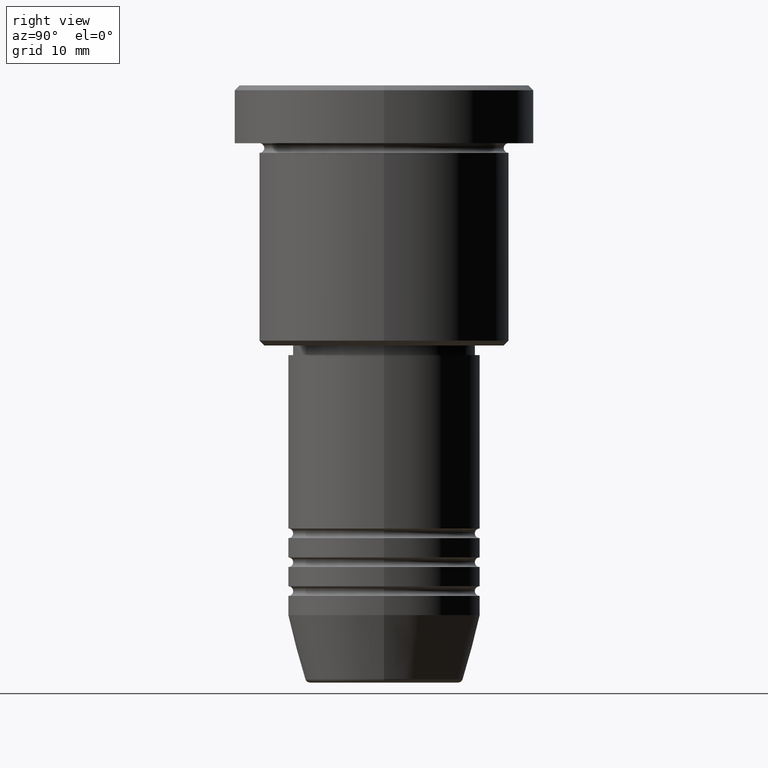
[diagram: clean part render]
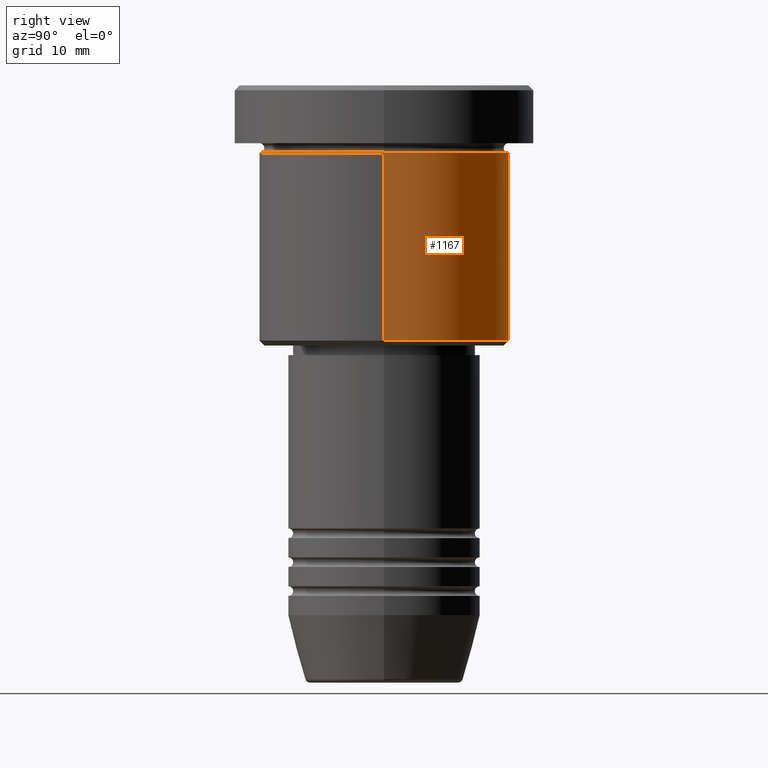
[diagram: same view with one face highlighted and labeled with its STEP entity id]
A machine part, right view. The second image highlights one B-rep face of the part: STEP entity #1167.
In plain terms, the highlighted cylindrical surface (partial cylindrical patch) has radius 13 mm, axis along (-0, -0, 1).
Its self-contained STEP definition (entity closure, byte-faithful):
#24 = CARTESIAN_POINT ( 'NONE',  ( 0.000000000000000000, 0.000000000000000000, -26.49999999999998934 ) ) ;
#107 = DIRECTION ( 'NONE',  ( -0.000000000000000000, -0.000000000000000000, 1.000000000000000000 ) ) ;
#284 = LINE ( 'NONE', #644, #785 ) ;
#290 = DIRECTION ( 'NONE',  ( 1.000000000000000000, 0.000000000000000000, 0.000000000000000000 ) ) ;
#311 = CYLINDRICAL_SURFACE ( 'NONE', #318, 13.00000000000000000 ) ;
#318 = AXIS2_PLACEMENT_3D ( 'NONE', #398, #932, #290 ) ;
#356 = EDGE_CURVE ( 'NONE', #1074, #1117, #919, .T. ) ;
#377 = ORIENTED_EDGE ( 'NONE', *, *, #386, .F. ) ;
#385 = DIRECTION ( 'NONE',  ( -0.000000000000000000, -0.000000000000000000, 1.000000000000000000 ) ) ;
#386 = EDGE_CURVE ( 'NONE', #1074, #1091, #284, .T. ) ;
#398 = CARTESIAN_POINT ( 'NONE',  ( 0.000000000000000000, 0.000000000000000000, 0.000000000000000000 ) ) ;
#444 = AXIS2_PLACEMENT_3D ( 'NONE', #24, #385, #1024 ) ;
#449 = DIRECTION ( 'NONE',  ( -0.000000000000000000, -0.000000000000000000, 1.000000000000000000 ) ) ;
#523 = VECTOR ( 'NONE', #449, 1000.000000000000000 ) ;
#541 = CIRCLE ( 'NONE', #596, 13.00000000000000000 ) ;
#543 = DIRECTION ( 'NONE',  ( 1.000000000000000000, 0.000000000000000000, 0.000000000000000000 ) ) ;
#545 = EDGE_CURVE ( 'NONE', #1117, #861, #908, .T. ) ;
#596 = AXIS2_PLACEMENT_3D ( 'NONE', #1116, #107, #543 ) ;
#604 = ORIENTED_EDGE ( 'NONE', *, *, #545, .T. ) ;
#613 = CARTESIAN_POINT ( 'NONE',  ( -13.00000000000000000, 1.592040838891559095E-15, 0.000000000000000000 ) ) ;
#617 = CARTESIAN_POINT ( 'NONE',  ( -13.00000000000000000, 1.592040838891559095E-15, -6.999999999999995559 ) ) ;
#632 = CARTESIAN_POINT ( 'NONE',  ( -13.00000000000000000, 1.592040838891559095E-15, -26.49999999999998934 ) ) ;
#637 = EDGE_LOOP ( 'NONE', ( #740, #604, #698, #377 ) ) ;
#644 = CARTESIAN_POINT ( 'NONE',  ( 13.00000000000000000, 0.000000000000000000, 0.000000000000000000 ) ) ;
#698 = ORIENTED_EDGE ( 'NONE', *, *, #700, .F. ) ;
#700 = EDGE_CURVE ( 'NONE', #1091, #861, #541, .T. ) ;
#707 = CARTESIAN_POINT ( 'NONE',  ( 13.00000000000000000, 0.000000000000000000, -26.49999999999998934 ) ) ;
#718 = CARTESIAN_POINT ( 'NONE',  ( 13.00000000000000000, 0.000000000000000000, -6.999999999999995559 ) ) ;
#740 = ORIENTED_EDGE ( 'NONE', *, *, #356, .T. ) ;
#785 = VECTOR ( 'NONE', #825, 1000.000000000000000 ) ;
#825 = DIRECTION ( 'NONE',  ( -0.000000000000000000, -0.000000000000000000, 1.000000000000000000 ) ) ;
#861 = VERTEX_POINT ( 'NONE', #617 ) ;
#908 = LINE ( 'NONE', #613, #523 ) ;
#919 = CIRCLE ( 'NONE', #444, 13.00000000000000000 ) ;
#932 = DIRECTION ( 'NONE',  ( -0.000000000000000000, -0.000000000000000000, 1.000000000000000000 ) ) ;
#1024 = DIRECTION ( 'NONE',  ( -1.000000000000000000, 0.000000000000000000, 0.000000000000000000 ) ) ;
#1074 = VERTEX_POINT ( 'NONE', #707 ) ;
#1091 = VERTEX_POINT ( 'NONE', #718 ) ;
#1116 = CARTESIAN_POINT ( 'NONE',  ( 0.000000000000000000, 0.000000000000000000, -6.999999999999995559 ) ) ;
#1117 = VERTEX_POINT ( 'NONE', #632 ) ;
#1128 = FACE_OUTER_BOUND ( 'NONE', #637, .T. ) ;
#1167 = ADVANCED_FACE ( 'NONE', ( #1128 ), #311, .T. ) ;